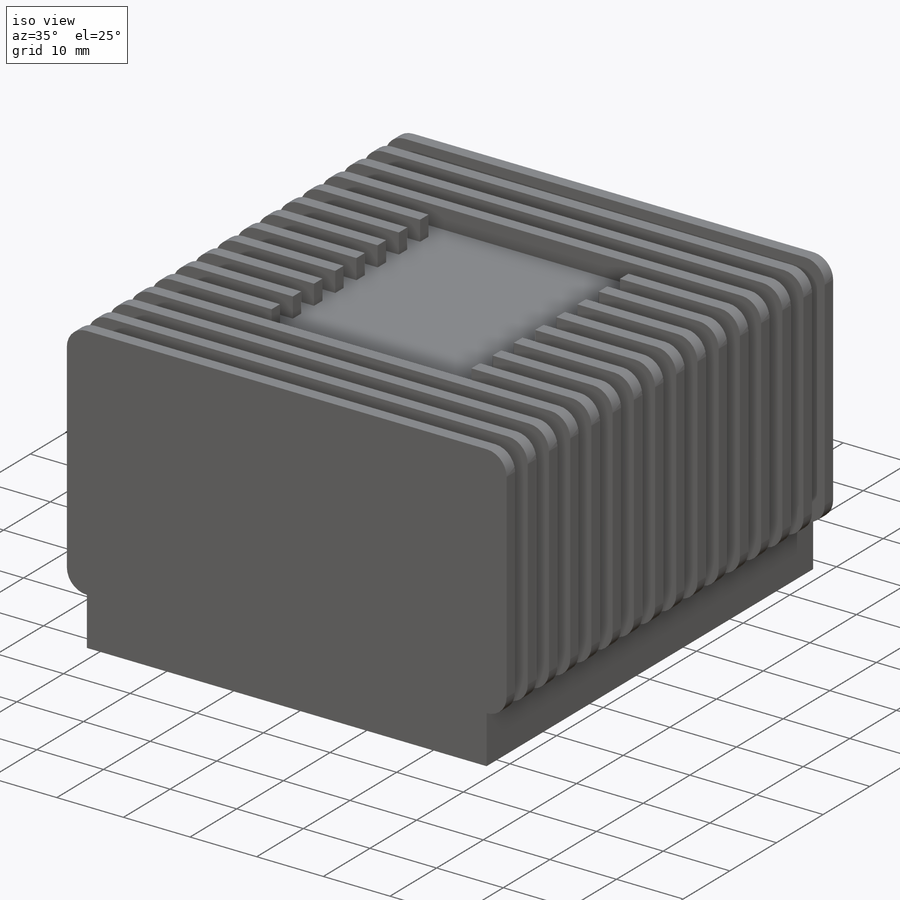
[diagram: iso view]
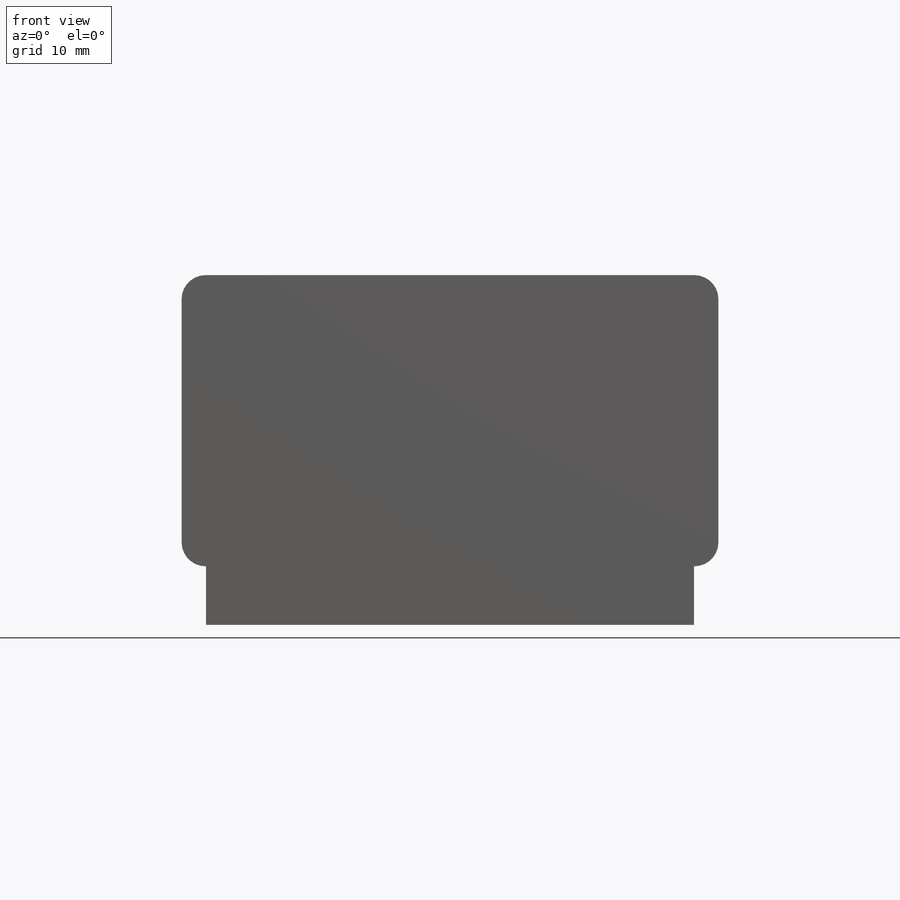
[diagram: front view]
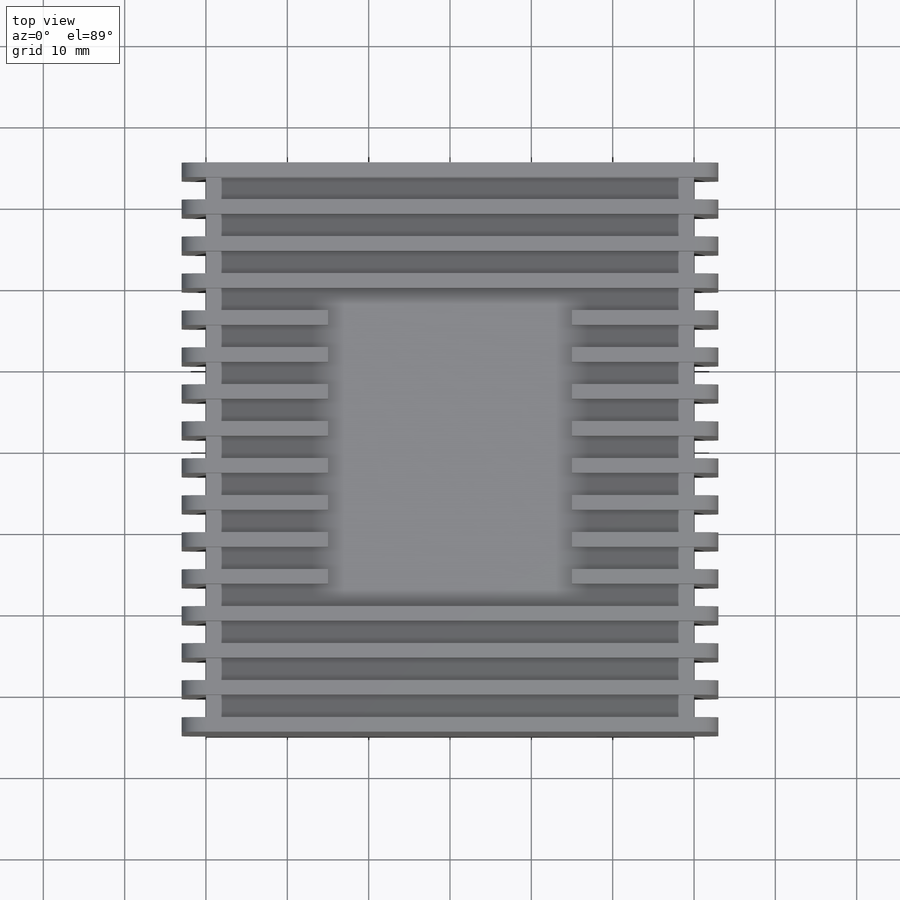
[diagram: top view]
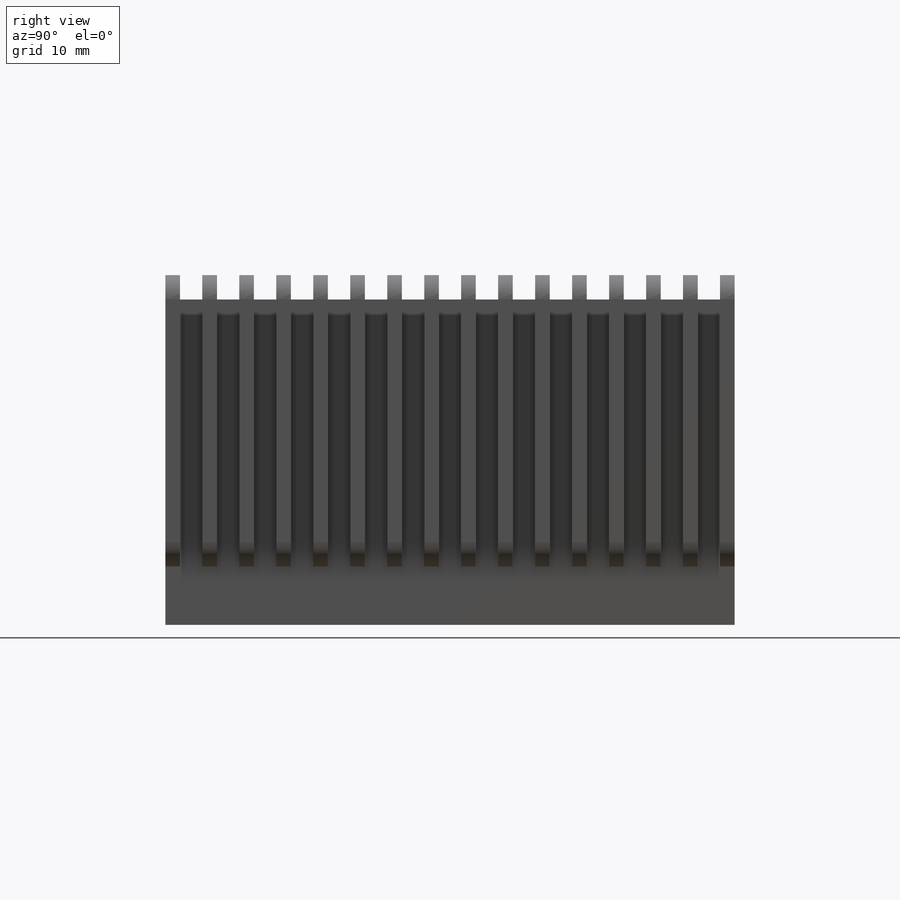
[diagram: right view]
SOLIDWORKS PART (.sldprt)
format: sldprt  version: not decoded by parser v0  size: 1,179,136 bytes
history: native  units: mm
features: sketch x3, extrude x2, plane x2, fillet x2, material x1, pattern_linear x1, cut_extrude x1, shell x1, move_body x1 (+12 scaffold rows collapsed)
feature tree (26):
  scaffold x12  (default folders/planes/origin — collapsed)
  material  "Material <not specified>"
  sketch  "Sketch1"  dims[D1=60.0mm D2=70.0mm]
  extrude  "Boss-Extrude1"  Depth=40mm
  sketch  "Sketch2"  dims[c1.D1=2.95mm c1.D2=2.95mm c1.D3=2.95mm c1.D4=2.95mm c2.D1=3.0mm]
  extrude  "Boss-Extrude2"  Depth=1.8mm
  pattern_linear  "LPattern1"  Count1=16 Count2=1 Spacing1=4.546667mm Spacing2=50mm
  plane  "Plane1"  Offset=0mm
  sketch  "Sketch5"  dims[D1=34.4304mm D2=30.0mm]
  cut_extrude  "Cut-Extrude1"  Depth=16.251847mm
  shell  "Shell2"  Thickness=2mm
  fillet  "Fillet5"  Radius=2mm
  plane  "Plane2"  Offset=2mm GrooveHeight=2mm GrooveWidth=1mm GrooveDraftAngle=3deg Clearance=0mm Gap=0mm upGap=2mm
  fillet  "Lip&Groove1-Lip"  Radius=2mm LipHeight=2mm LipWidth=1mm LipDraftAngle=3deg Clearance=0mm Gap=0mm upGap=2mm
  move_body  "Body-Move/Copy1"
decode coverage: 10 of 11 modeling features carry decoded parameters
note: suppression state not decoded; provenance and decode notes live in map.json
